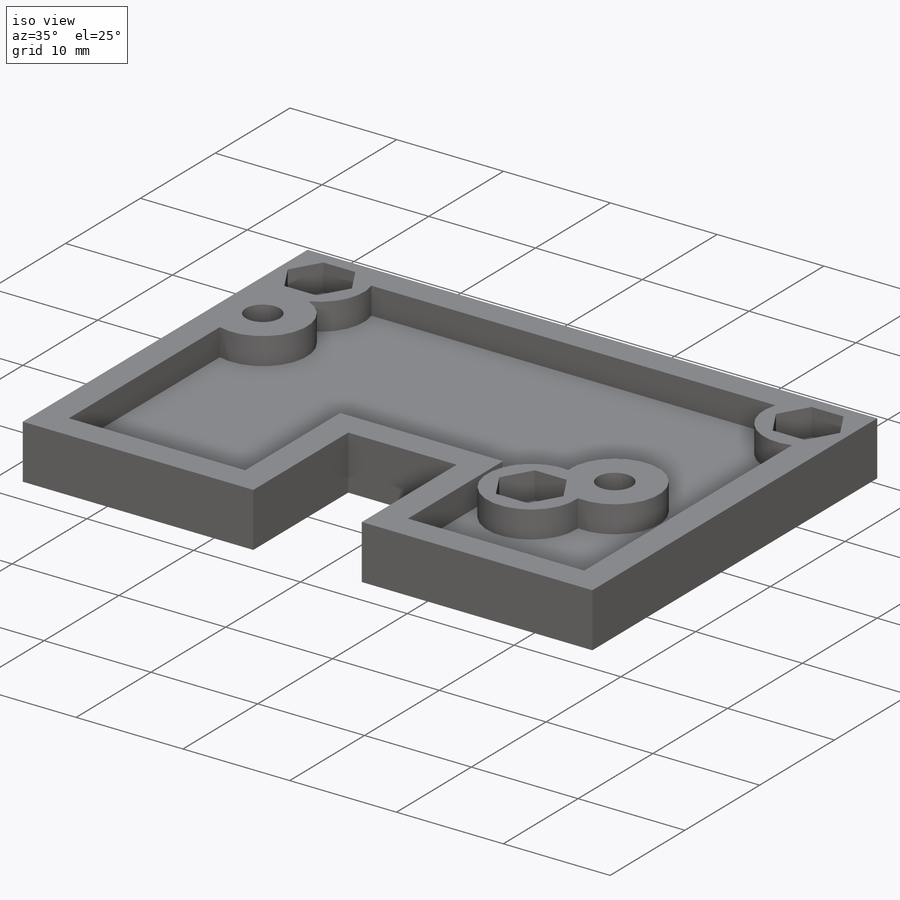
[diagram: iso view]
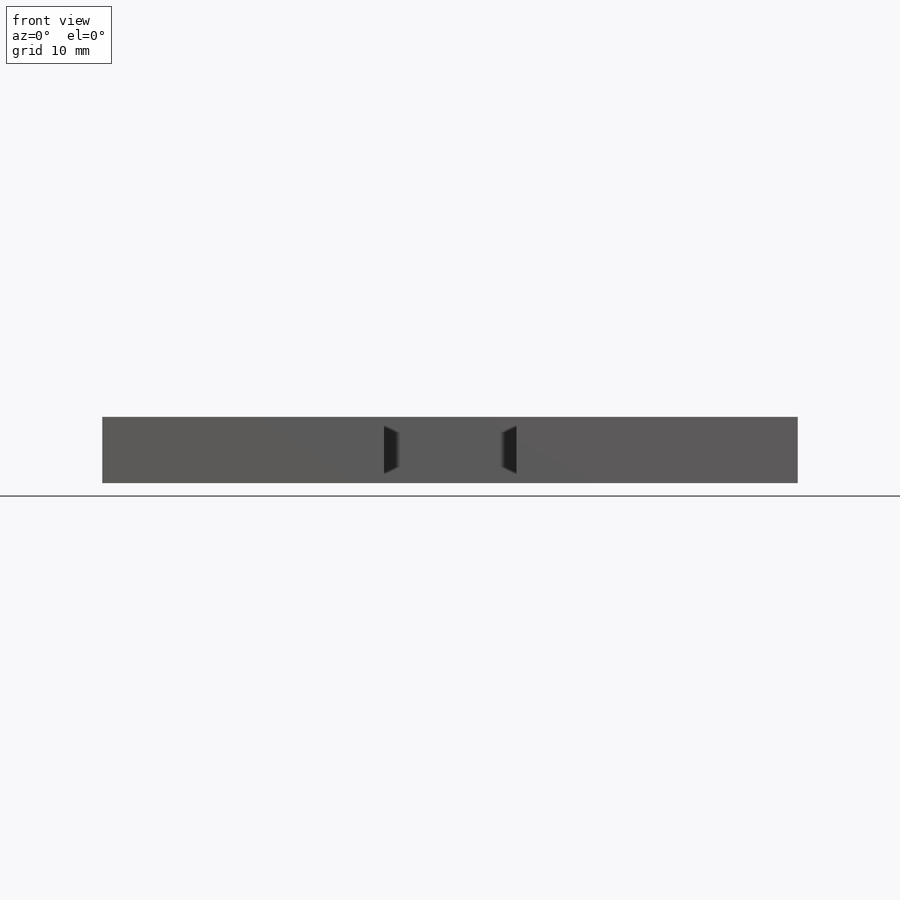
[diagram: front view]
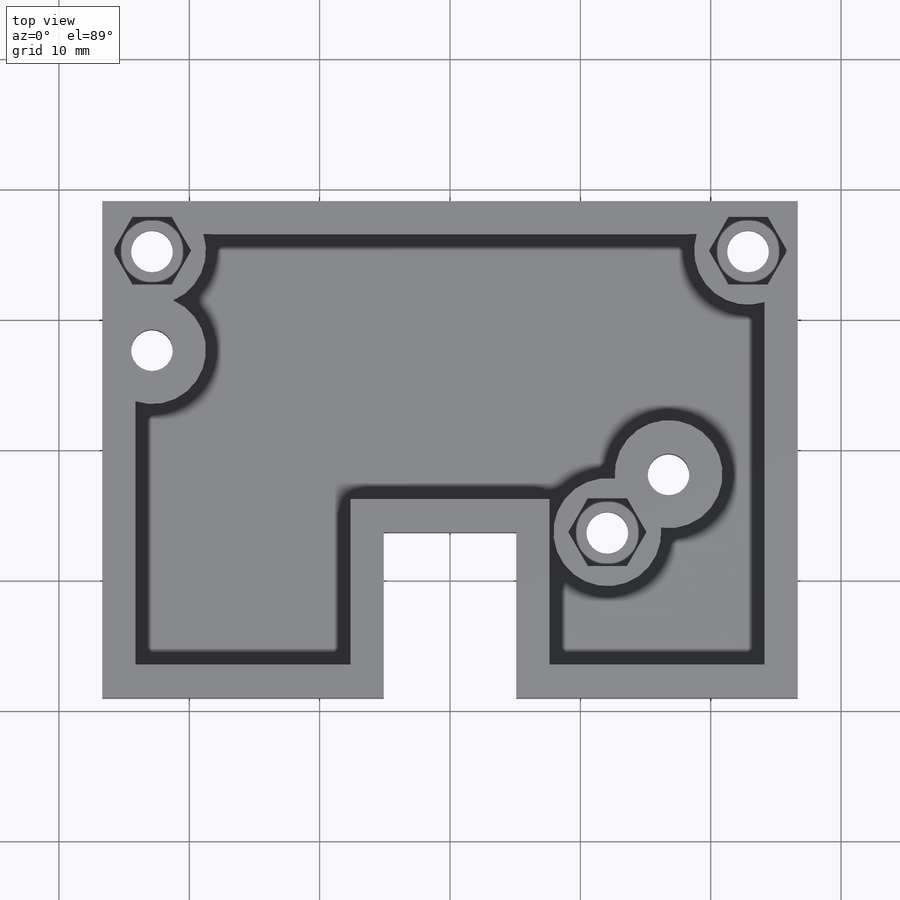
[diagram: top view]
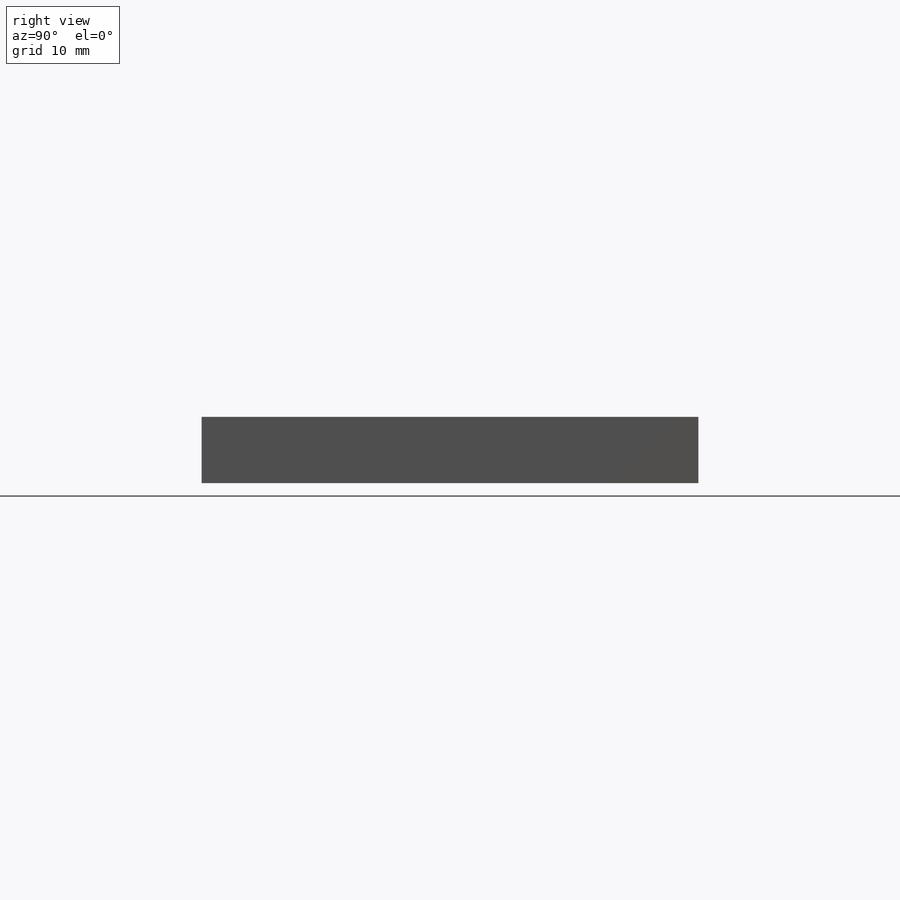
[diagram: right view]
SOLIDWORKS PART (.sldprt)
format: sldprt  version: not decoded by parser v0  size: 332,800 bytes
history: native  units: mm
features: sketch x2, material x1, extrude x1, shell x1, cut_extrude x1 (+11 scaffold rows collapsed)
feature tree (17):
  scaffold x11  (default folders/planes/origin — collapsed)
  material  "ABS PC"
  sketch  "Sketch1"  dims[c1.D3=5.08mm c1.D4=~5.080002mm c1.D7=2.8448mm c1.D10=2.8448mm c1.D18=~5.080001mm c1.D19=5.08mm c1.D20=5.08mm c1.D21=5.08mm c1.D22=5.08mm c1.D23=4.318mm c1.D30=4.318mm c1.D1=5.08mm c2.D3=4.318mm c2.D4=3.2mm c2.D5=5.08mm c2.D17=5.08mm c2.D8=4.318mm c2.D15=3.2mm c2.D1=26.416mm c2.D2=24.13mm c3.D4=4.318mm c3.D5=5.08mm c3.D6=11.4935mm c3.D7=~15.18138mm c3.D2=8.636mm c3.D8=~23.81738mm c4.D7=24.13mm c4.D8=7.62mm c4.D9=3.81mm c4.D10=22.098mm c4.D2=7.3025mm c4.D6=~10.63625mm c4.D11=10.16mm c4.D12=~5.080002mm c4.D13=22.098mm c5.D8=2.54mm c5.D9=0.9525mm c5.D13=3.81mm c5.D14=0.9525mm c5.D2=17.78mm c5.D15=2.54mm c5.D16=5.08mm c6.D2=5.08mm c6.D17=21.59mm c7.D2=7.3025mm c7.D15=7.3025mm c7.D16=~10.63625mm c7.D17=~10.63625mm c7.D23=7.62mm c7.D24=10.16mm c7.D25=10.16mm c7.D26=10.16mm c7.D27=7.62mm c7.D28=50.8mm c7.D29=50.8mm c7.D30=7.1755mm c8.D15=20.0025mm c8.D30=~10.63625mm c8.D31=50.8mm c8.D32=50.8mm c8.D33=38.1mm c8.D34=38.1mm c8.D35=48.26mm c8.D36=8.255mm c8.D37=0.9525mm c8.D6=9.8425mm c8.D8=9.8425mm c8.D16=10.4775mm c8.D9=27.94mm c8.D11=48.26mm c8.D1=10.16mm c8.D2=9.8425mm c9.D6=25.4mm c9.D7=10.16mm c9.D8=0.9525mm c9.D9=~10.472499mm c10.D6=3.81mm c10.D9=3.81mm c10.D7=38.1mm c10.D10=38.1mm c10.D5=5.08mm c11.D10=5.08mm c11.D11=5.08mm c11.D12=5.08mm c11.D13=27.94mm c12.D13=~53.130102deg c13.D13=~7.243503mm c13.D11=38.1mm c13.D12=14.9225mm c14.D13=14.9225mm c14.D14=53.34mm c14.D15=7.62mm c14.D16=38.1mm c14.D3=10.16mm c14.D5=3.81mm c14.D10=11.43mm c14.D11=16.1925mm c15.D10=11.43mm c15.D17=3.81mm c15.D18=3.81mm c15.D11=16.51mm c16.D10=38.1mm c16.D11=12.7mm c17.D10=14.605mm c17.D11=13.97mm c17.D2=12.7mm c17.D3=17.145mm c17.D5=9.906mm c17.D8=3.81mm c18.D11=11.43mm c18.D12=3.81mm c18.D3=17.145mm c18.D7=38.1mm c18.D13=12.7mm c18.D16=21.59mm]
  extrude  "Boss-Extrude1"  Depth=5.08mm
  shell  "Shell1"  Thickness=2.54mm
  sketch  "Sketch8"  dims[c1.D1=4.826mm c1.D2=5.715mm c2.D1=5.2mm c2.D2=5.2mm c2.D3=5.2mm c3.D1=5.2mm c3.D3=5.2mm]
  cut_extrude  "Cut-Extrude1"  Depth=2.54mm
decode coverage: 5 of 5 modeling features carry decoded parameters
note: ~ marks probable driven/reference dimensions
note: suppression state not decoded; provenance and decode notes live in map.json
